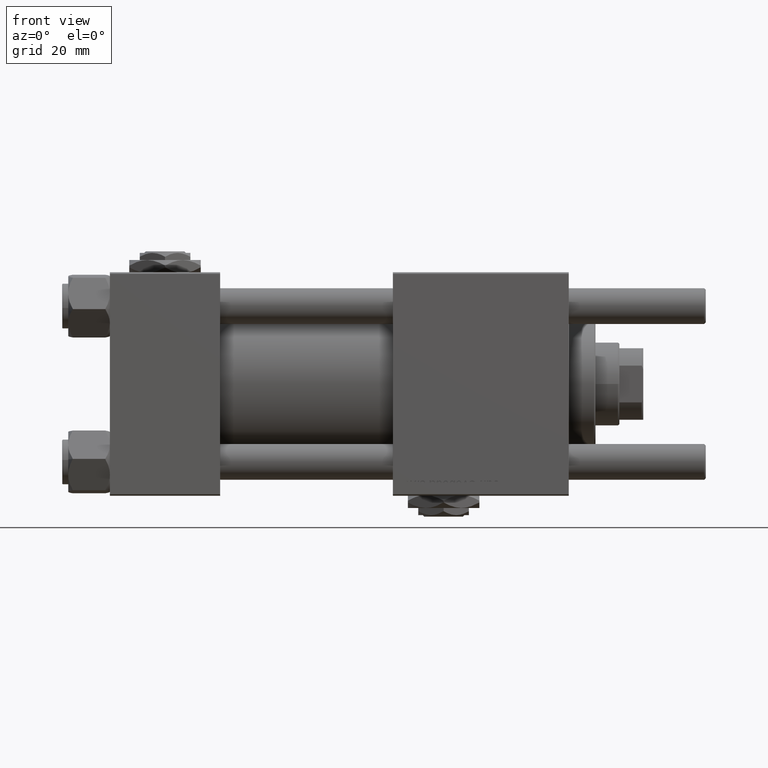
[diagram: clean part render]
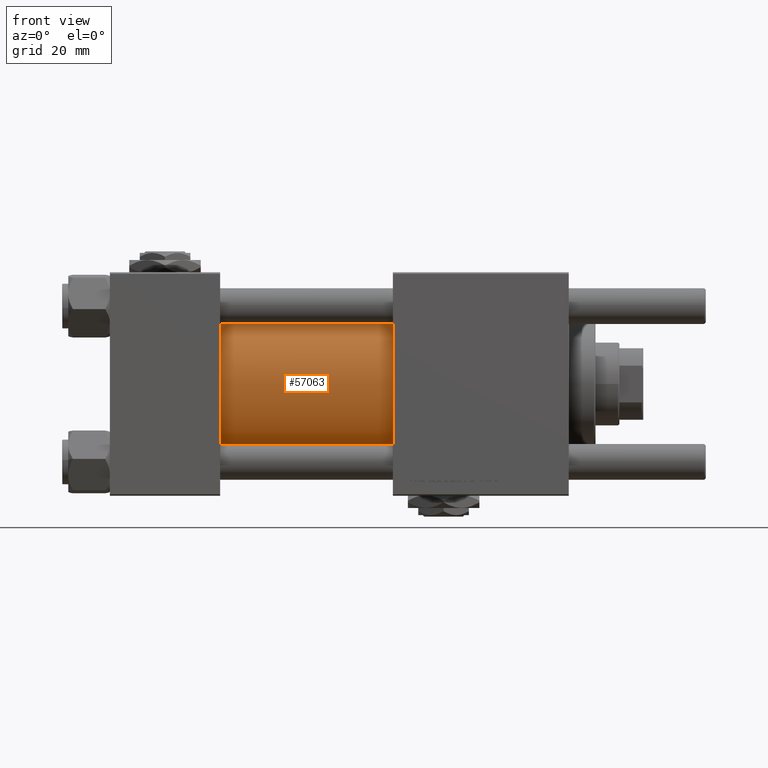
[diagram: same view with one face highlighted and labeled with its STEP entity id]
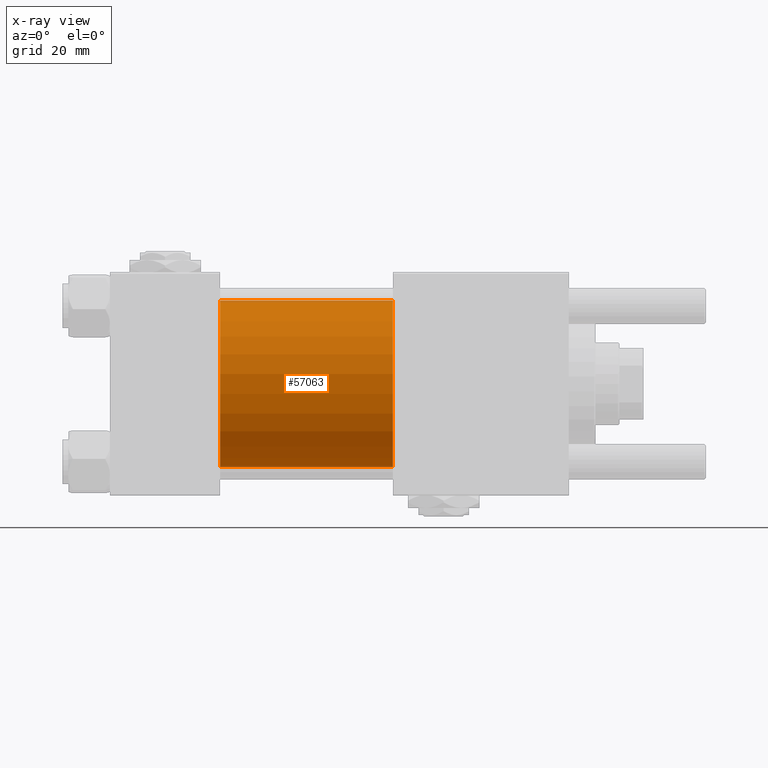
[diagram: x-ray of the same camera — body ghosted, the highlighted face saturated]
A machine part, front view. The second image highlights one B-rep face of the part: STEP entity #57063.
The next image is the same camera in x-ray: the body ghosted, the highlighted face saturated — about 2% of this face is hidden behind the body in this view.
In plain terms, the highlighted cylindrical surface (partial cylindrical patch) has radius 28 mm, axis along (-1, -0, -0).
Its self-contained STEP definition (entity closure, byte-faithful):
#499 = DIRECTION ( 'NONE',  ( -1.000000000000000000, -0.000000000000000000, -0.000000000000000000 ) ) ;
#1302 = EDGE_CURVE ( 'NONE', #47641, #7210, #11203, .T. ) ;
#1619 = CARTESIAN_POINT ( 'NONE',  ( 95.00000000000000000, -2.602085213965210642E-15, 28.00000000000000000 ) ) ;
#2730 = CARTESIAN_POINT ( 'NONE',  ( 37.00000000000000000, -2.602085213965210642E-15, 28.00000000000000000 ) ) ;
#3715 = DIRECTION ( 'NONE',  ( 1.000000000000000000, 0.000000000000000000, 0.000000000000000000 ) ) ;
#4961 = FACE_OUTER_BOUND ( 'NONE', #47711, .T. ) ;
#5050 = EDGE_CURVE ( 'NONE', #41192, #23712, #48149, .T. ) ;
#5094 = EDGE_CURVE ( 'NONE', #7210, #23712, #34956, .T. ) ;
#7210 = VERTEX_POINT ( 'NONE', #25346 ) ;
#7924 = CARTESIAN_POINT ( 'NONE',  ( 95.00000000000000000, 8.269258236473776482E-16, -28.00000000000000000 ) ) ;
#11203 = CIRCLE ( 'NONE', #18808, 28.00000000000000000 ) ;
#11546 = ORIENTED_EDGE ( 'NONE', *, *, #52720, .T. ) ;
#12062 = DIRECTION ( 'NONE',  ( -1.000000000000000000, -0.000000000000000000, -0.000000000000000000 ) ) ;
#14032 = VECTOR ( 'NONE', #42980, 1000.000000000000000 ) ;
#17137 = DIRECTION ( 'NONE',  ( 1.000000000000000000, -0.000000000000000000, 0.000000000000000000 ) ) ;
#17445 = ORIENTED_EDGE ( 'NONE', *, *, #5050, .T. ) ;
#18644 = DIRECTION ( 'NONE',  ( 0.000000000000000000, 0.000000000000000000, 1.000000000000000000 ) ) ;
#18808 = AXIS2_PLACEMENT_3D ( 'NONE', #30753, #3715, #31330 ) ;
#23712 = VERTEX_POINT ( 'NONE', #27708 ) ;
#25346 = CARTESIAN_POINT ( 'NONE',  ( 95.00000000000000000, 8.269258236473776482E-16, -28.00000000000000000 ) ) ;
#25455 = LINE ( 'NONE', #43531, #53876 ) ;
#27549 = CYLINDRICAL_SURFACE ( 'NONE', #31298, 28.00000000000000000 ) ;
#27708 = CARTESIAN_POINT ( 'NONE',  ( 37.00000000000000000, 8.269258236473776482E-16, -28.00000000000000000 ) ) ;
#30753 = CARTESIAN_POINT ( 'NONE',  ( 95.00000000000000000, -2.602085213965210642E-15, 0.000000000000000000 ) ) ;
#31298 = AXIS2_PLACEMENT_3D ( 'NONE', #41182, #499, #18644 ) ;
#31330 = DIRECTION ( 'NONE',  ( 0.000000000000000000, 0.000000000000000000, -1.000000000000000000 ) ) ;
#33915 = AXIS2_PLACEMENT_3D ( 'NONE', #39099, #17137, #52769 ) ;
#34956 = LINE ( 'NONE', #7924, #14032 ) ;
#36680 = ORIENTED_EDGE ( 'NONE', *, *, #5094, .F. ) ;
#39099 = CARTESIAN_POINT ( 'NONE',  ( 37.00000000000000000, -2.602085213965210642E-15, 0.000000000000000000 ) ) ;
#39237 = ORIENTED_EDGE ( 'NONE', *, *, #1302, .F. ) ;
#41182 = CARTESIAN_POINT ( 'NONE',  ( 95.00000000000000000, -2.602085213965210642E-15, 0.000000000000000000 ) ) ;
#41192 = VERTEX_POINT ( 'NONE', #2730 ) ;
#42980 = DIRECTION ( 'NONE',  ( -1.000000000000000000, -0.000000000000000000, -0.000000000000000000 ) ) ;
#43531 = CARTESIAN_POINT ( 'NONE',  ( 95.00000000000000000, -2.602085213965210642E-15, 28.00000000000000000 ) ) ;
#47641 = VERTEX_POINT ( 'NONE', #1619 ) ;
#47711 = EDGE_LOOP ( 'NONE', ( #36680, #39237, #11546, #17445 ) ) ;
#48149 = CIRCLE ( 'NONE', #33915, 28.00000000000000000 ) ;
#52720 = EDGE_CURVE ( 'NONE', #47641, #41192, #25455, .T. ) ;
#52769 = DIRECTION ( 'NONE',  ( 0.000000000000000000, 0.000000000000000000, 1.000000000000000000 ) ) ;
#53876 = VECTOR ( 'NONE', #12062, 1000.000000000000000 ) ;
#57063 = ADVANCED_FACE ( 'NONE', ( #4961 ), #27549, .T. ) ;